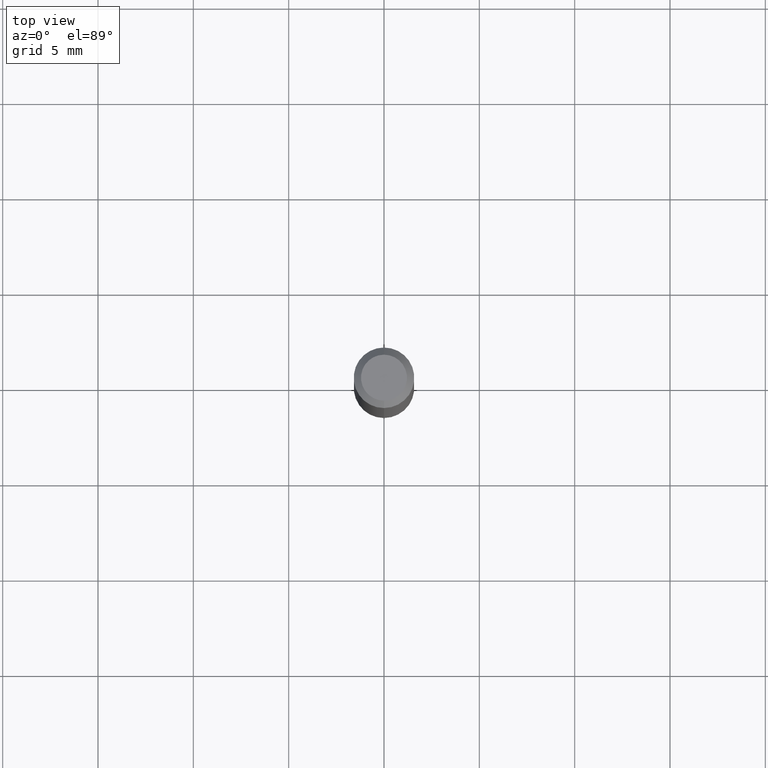
[diagram: clean part render]
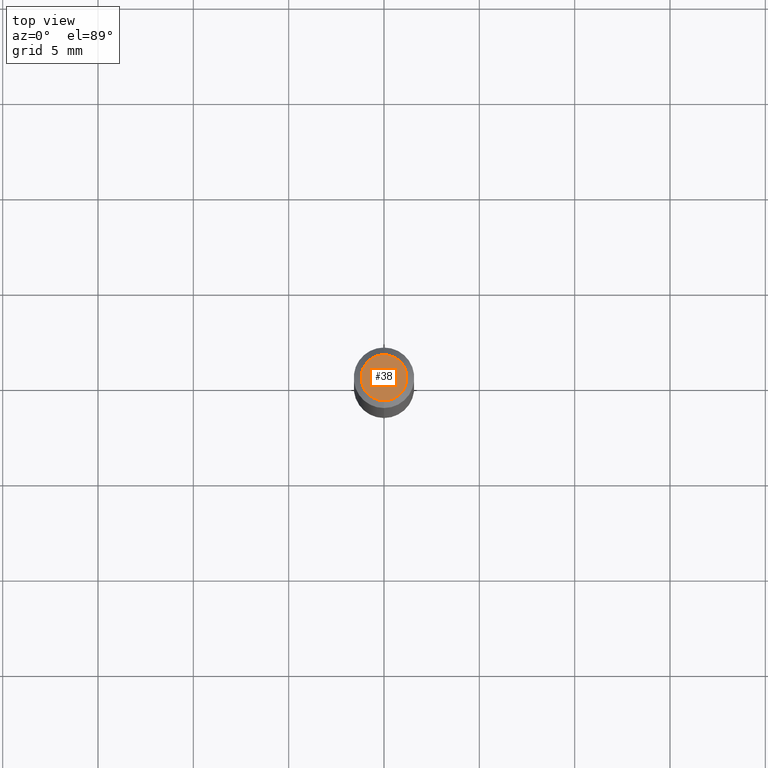
[diagram: same view with one face highlighted and labeled with its STEP entity id]
A machine part, top view. The second image highlights one B-rep face of the part: STEP entity #38.
In plain terms, the highlighted planar face has unit normal (0, -0, -1).
Its self-contained STEP definition (entity closure, byte-faithful):
#23 = VERTEX_POINT ( 'NONE', #231 ) ;
#27 = AXIS2_PLACEMENT_3D ( 'NONE', #375, #217, #177 ) ;
#34 = AXIS2_PLACEMENT_3D ( 'NONE', #270, #188, #241 ) ;
#38 = ADVANCED_FACE ( 'NONE', ( #109 ), #502, .F. ) ;
#69 = CARTESIAN_POINT ( 'NONE',  ( 3.840629472727447874E-16, 0.04749999999999999362, -1.747056831868805136E-16 ) ) ;
#96 = EDGE_LOOP ( 'NONE', ( #362, #186 ) ) ;
#109 = FACE_OUTER_BOUND ( 'NONE', #96, .T. ) ;
#146 = DIRECTION ( 'NONE',  ( -2.445453017855270407E-29, 3.491503948630130135E-15, 1.000000000000000000 ) ) ;
#165 = CIRCLE ( 'NONE', #393, 0.04749999999999999362 ) ;
#177 = DIRECTION ( 'NONE',  ( -6.982962677686266711E-15, -1.000000000000000000, 3.491503948630130135E-15 ) ) ;
#186 = ORIENTED_EDGE ( 'NONE', *, *, #486, .T. ) ;
#188 = DIRECTION ( 'NONE',  ( 2.445453017855270127E-29, -3.491503948630129740E-15, -1.000000000000000000 ) ) ;
#217 = DIRECTION ( 'NONE',  ( -2.445453017855270407E-29, 3.491503948630130135E-15, 1.000000000000000000 ) ) ;
#231 = CARTESIAN_POINT ( 'NONE',  ( -3.773273898774340269E-16, -0.04749999999999999362, 1.569871919329818196E-16 ) ) ;
#241 = DIRECTION ( 'NONE',  ( 6.982962677686265922E-15, 1.000000000000000000, -3.491503948630129740E-15 ) ) ;
#270 = CARTESIAN_POINT ( 'NONE',  ( 3.316907271900976096E-16, 0.04749999999999999362, -1.702760603734058278E-16 ) ) ;
#349 = EDGE_CURVE ( 'NONE', #441, #23, #496, .T. ) ;
#362 = ORIENTED_EDGE ( 'NONE', *, *, #349, .T. ) ;
#375 = CARTESIAN_POINT ( 'NONE',  ( 2.166486895434437693E-46, -3.093209108837784271E-32, -8.859245626949342400E-18 ) ) ;
#393 = AXIS2_PLACEMENT_3D ( 'NONE', #420, #146, #457 ) ;
#420 = CARTESIAN_POINT ( 'NONE',  ( 2.166486895434437693E-46, -3.093209108837784271E-32, -8.859245626949342400E-18 ) ) ;
#441 = VERTEX_POINT ( 'NONE', #69 ) ;
#457 = DIRECTION ( 'NONE',  ( -6.982962677686266711E-15, -1.000000000000000000, 3.491503948630130135E-15 ) ) ;
#486 = EDGE_CURVE ( 'NONE', #23, #441, #165, .T. ) ;
#496 = CIRCLE ( 'NONE', #27, 0.04749999999999999362 ) ;
#502 = PLANE ( 'NONE',  #34 ) ;